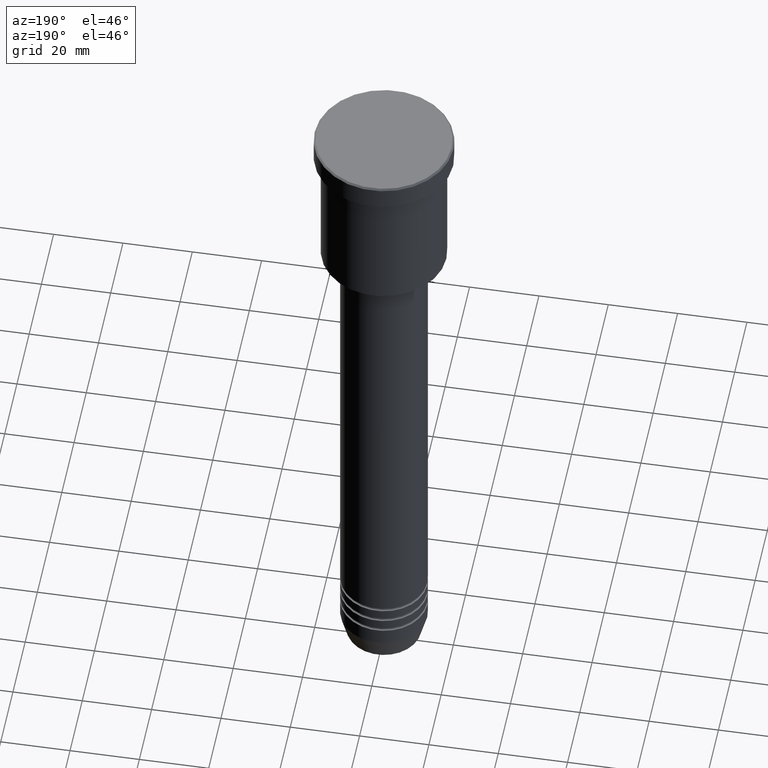
[diagram: clean part render]
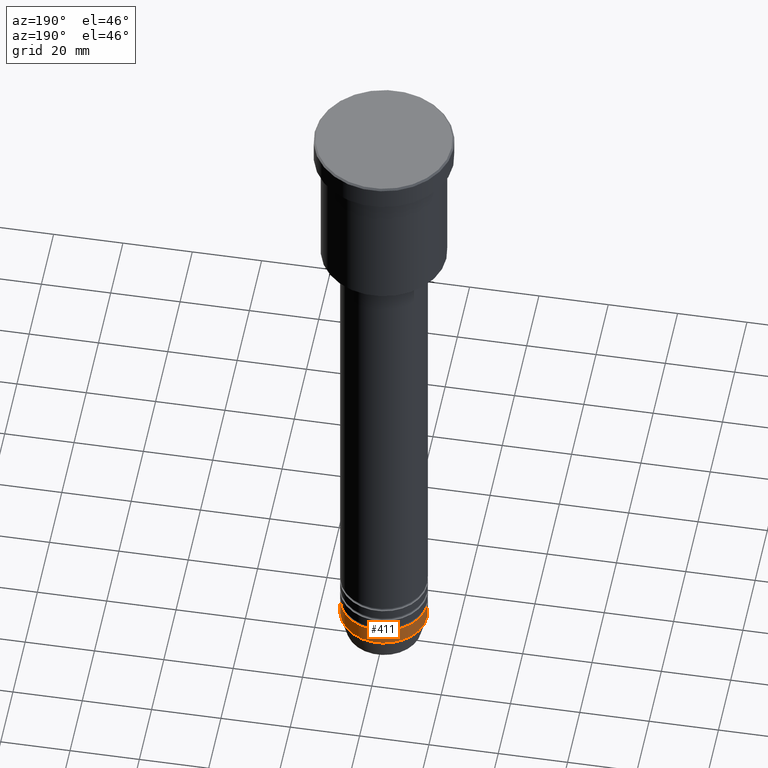
[diagram: same view with one face highlighted and labeled with its STEP entity id]
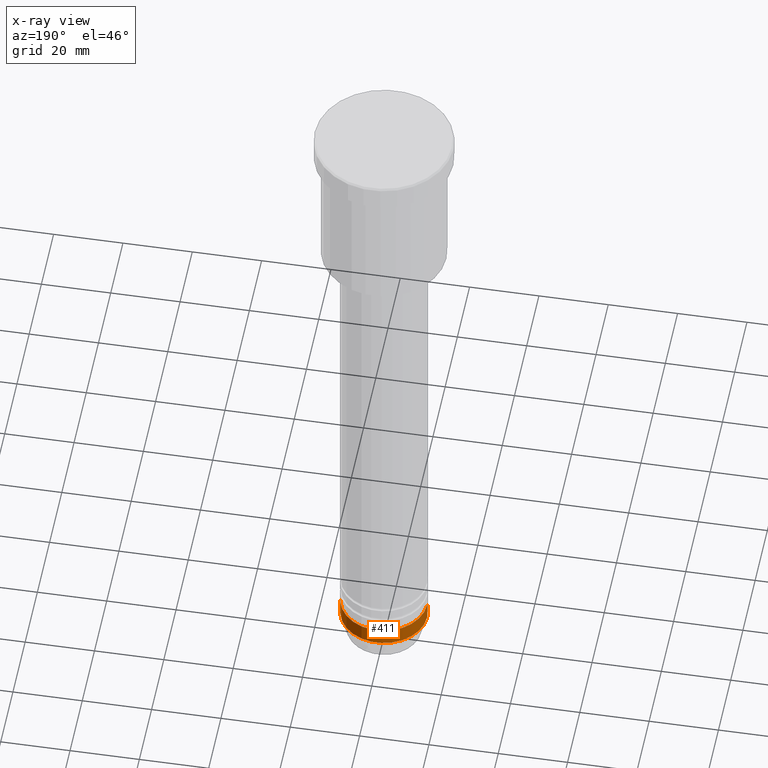
[diagram: x-ray of the same camera — body ghosted, the highlighted face saturated]
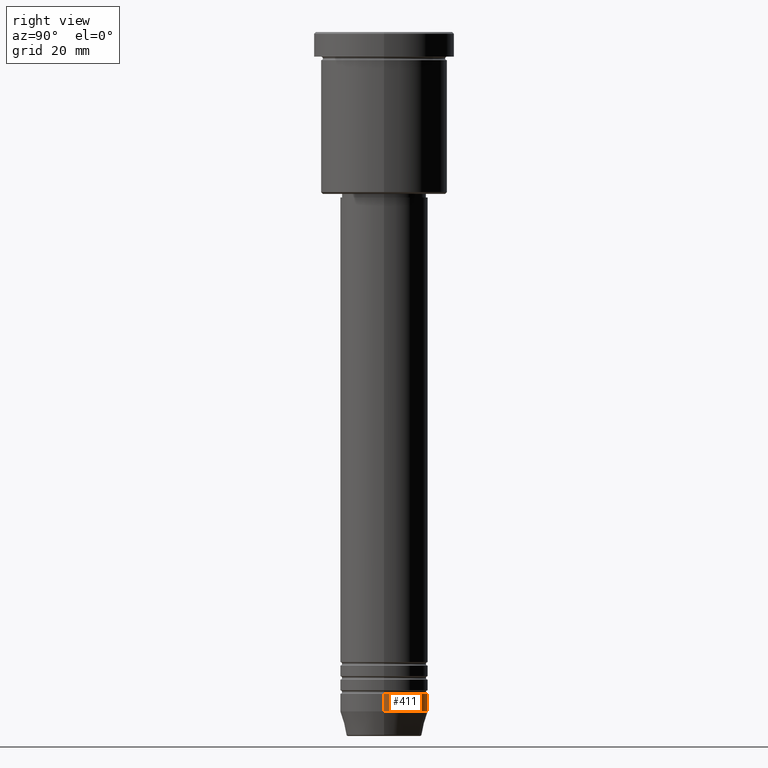
[diagram: same view with one face highlighted and labeled with its STEP entity id]
A machine part, auxiliary view. The second image highlights one B-rep face of the part: STEP entity #411.
The next image is the same camera in x-ray: the body ghosted, the highlighted face saturated — about 0% of this face is hidden behind the body in this view.
A second angle (right view) of the same face is appended — the face is thin or edge-on in the first view.
In plain terms, the highlighted cylindrical surface (partial cylindrical patch) has radius 12.5 mm, axis along (-0, -0, 1).
Its self-contained STEP definition (entity closure, byte-faithful):
#75 = AXIS2_PLACEMENT_3D ( 'NONE', #419, #1154, #888 ) ;
#76 = VECTOR ( 'NONE', #323, 1000.000000000000000 ) ;
#101 = EDGE_LOOP ( 'NONE', ( #1134, #211, #594, #460 ) ) ;
#175 = DIRECTION ( 'NONE',  ( -0.000000000000000000, -0.000000000000000000, 1.000000000000000000 ) ) ;
#211 = ORIENTED_EDGE ( 'NONE', *, *, #1073, .T. ) ;
#217 = CARTESIAN_POINT ( 'NONE',  ( 12.50000000000000000, 0.000000000000000000, -193.0000000000000284 ) ) ;
#233 = EDGE_CURVE ( 'NONE', #923, #1126, #424, .T. ) ;
#237 = DIRECTION ( 'NONE',  ( -0.000000000000000000, -0.000000000000000000, 1.000000000000000000 ) ) ;
#258 = DIRECTION ( 'NONE',  ( -0.000000000000000000, -0.000000000000000000, 1.000000000000000000 ) ) ;
#270 = CARTESIAN_POINT ( 'NONE',  ( 0.000000000000000000, 0.000000000000000000, 0.000000000000000000 ) ) ;
#323 = DIRECTION ( 'NONE',  ( -0.000000000000000000, -0.000000000000000000, 1.000000000000000000 ) ) ;
#368 = CYLINDRICAL_SURFACE ( 'NONE', #530, 12.50000000000000000 ) ;
#393 = CARTESIAN_POINT ( 'NONE',  ( -12.50000000000000000, 1.530808498934191521E-15, -188.0000000000000284 ) ) ;
#411 = ADVANCED_FACE ( 'NONE', ( #995 ), #368, .T. ) ;
#419 = CARTESIAN_POINT ( 'NONE',  ( 0.000000000000000000, 0.000000000000000000, -193.0000000000000284 ) ) ;
#424 = LINE ( 'NONE', #790, #830 ) ;
#460 = ORIENTED_EDGE ( 'NONE', *, *, #233, .F. ) ;
#511 = AXIS2_PLACEMENT_3D ( 'NONE', #687, #237, #975 ) ;
#530 = AXIS2_PLACEMENT_3D ( 'NONE', #270, #175, #726 ) ;
#594 = ORIENTED_EDGE ( 'NONE', *, *, #652, .F. ) ;
#621 = EDGE_CURVE ( 'NONE', #923, #659, #1009, .T. ) ;
#652 = EDGE_CURVE ( 'NONE', #1126, #972, #871, .T. ) ;
#659 = VERTEX_POINT ( 'NONE', #1055 ) ;
#686 = LINE ( 'NONE', #1148, #76 ) ;
#687 = CARTESIAN_POINT ( 'NONE',  ( 0.000000000000000000, 0.000000000000000000, -188.0000000000000284 ) ) ;
#726 = DIRECTION ( 'NONE',  ( 1.000000000000000000, 0.000000000000000000, 0.000000000000000000 ) ) ;
#790 = CARTESIAN_POINT ( 'NONE',  ( 12.50000000000000000, 0.000000000000000000, 0.000000000000000000 ) ) ;
#830 = VECTOR ( 'NONE', #258, 1000.000000000000000 ) ;
#871 = CIRCLE ( 'NONE', #511, 12.50000000000000000 ) ;
#888 = DIRECTION ( 'NONE',  ( 1.000000000000000000, 0.000000000000000000, 0.000000000000000000 ) ) ;
#923 = VERTEX_POINT ( 'NONE', #217 ) ;
#955 = CARTESIAN_POINT ( 'NONE',  ( 12.50000000000000000, 0.000000000000000000, -188.0000000000000284 ) ) ;
#972 = VERTEX_POINT ( 'NONE', #393 ) ;
#975 = DIRECTION ( 'NONE',  ( 1.000000000000000000, 0.000000000000000000, 0.000000000000000000 ) ) ;
#995 = FACE_OUTER_BOUND ( 'NONE', #101, .T. ) ;
#1009 = CIRCLE ( 'NONE', #75, 12.50000000000000000 ) ;
#1055 = CARTESIAN_POINT ( 'NONE',  ( -12.50000000000000000, 1.530808498934191521E-15, -193.0000000000000284 ) ) ;
#1073 = EDGE_CURVE ( 'NONE', #659, #972, #686, .T. ) ;
#1126 = VERTEX_POINT ( 'NONE', #955 ) ;
#1134 = ORIENTED_EDGE ( 'NONE', *, *, #621, .T. ) ;
#1148 = CARTESIAN_POINT ( 'NONE',  ( -12.50000000000000000, 1.530808498934191521E-15, 0.000000000000000000 ) ) ;
#1154 = DIRECTION ( 'NONE',  ( -0.000000000000000000, -0.000000000000000000, 1.000000000000000000 ) ) ;